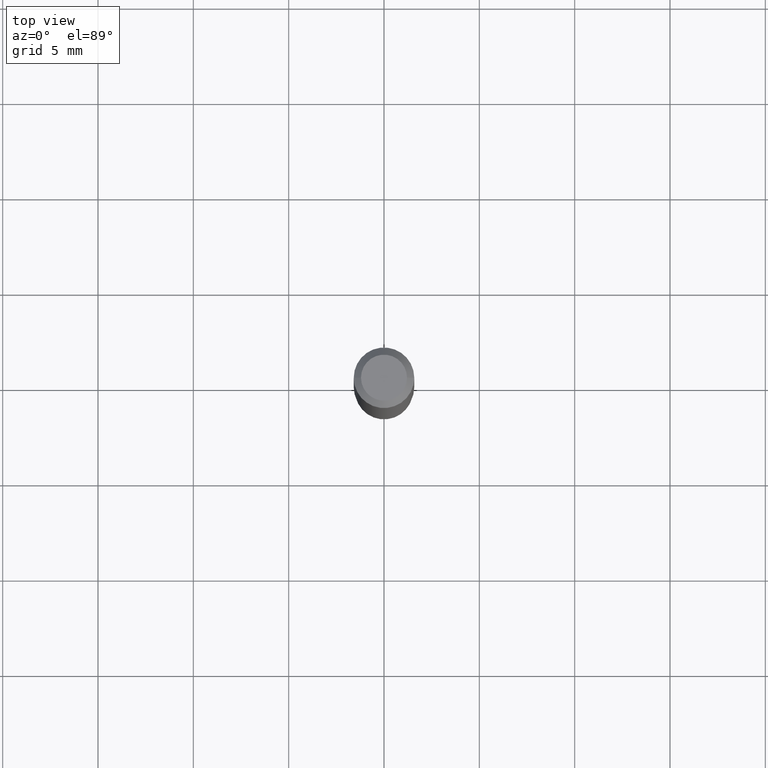
[diagram: clean part render]
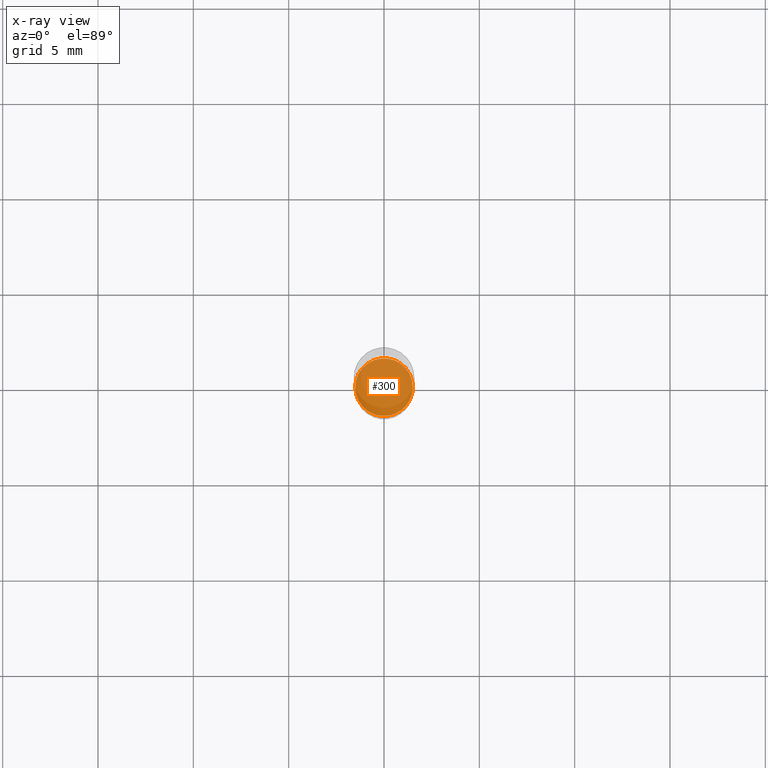
[diagram: x-ray — body ghosted, one internal face saturated and labeled with its STEP entity id]
A machine part, top view, then the same camera in x-ray: the body is ghosted and one INTERNAL B-rep face — a face not visible from any outside direction — is saturated and labeled: STEP entity #300.
In plain terms, the highlighted planar face has unit normal (-0, 0, 1).
Its self-contained STEP definition (entity closure, byte-faithful):
#2 = AXIS2_PLACEMENT_3D ( 'NONE', #279, #440, #316 ) ;
#39 = AXIS2_PLACEMENT_3D ( 'NONE', #301, #454, #503 ) ;
#67 = EDGE_CURVE ( 'NONE', #487, #460, #456, .T. ) ;
#80 = CARTESIAN_POINT ( 'NONE',  ( 0.05950000000000009448, -4.395775005603519536E-15, -1.140000000000000124 ) ) ;
#111 = DIRECTION ( 'NONE',  ( 1.000000000000000000, -6.982962677686265133E-15, 0.000000000000000000 ) ) ;
#118 = AXIS2_PLACEMENT_3D ( 'NONE', #472, #313, #111 ) ;
#144 = PLANE ( 'NONE',  #39 ) ;
#147 = ORIENTED_EDGE ( 'NONE', *, *, #450, .F. ) ;
#264 = FACE_OUTER_BOUND ( 'NONE', #507, .T. ) ;
#271 = ORIENTED_EDGE ( 'NONE', *, *, #67, .F. ) ;
#279 = CARTESIAN_POINT ( 'NONE',  ( 2.787834439051055989E-29, -3.980288726281186698E-15, -1.140000000000000124 ) ) ;
#300 = ADVANCED_FACE ( 'NONE', ( #264 ), #144, .F. ) ;
#301 = CARTESIAN_POINT ( 'NONE',  ( 2.787834439051055989E-29, -3.980288726281186698E-15, -1.140000000000000124 ) ) ;
#313 = DIRECTION ( 'NONE',  ( -2.445468806185136597E-29, 3.491481338843145583E-15, 1.000000000000000000 ) ) ;
#316 = DIRECTION ( 'NONE',  ( 1.000000000000000000, -6.982962677686265133E-15, 0.000000000000000000 ) ) ;
#439 = CARTESIAN_POINT ( 'NONE',  ( -0.05950000000000009448, -3.554866571329815116E-15, -1.140000000000000124 ) ) ;
#440 = DIRECTION ( 'NONE',  ( -2.445468806185136597E-29, 3.491481338843145583E-15, 1.000000000000000000 ) ) ;
#450 = EDGE_CURVE ( 'NONE', #460, #487, #465, .T. ) ;
#454 = DIRECTION ( 'NONE',  ( -2.438088387897960049E-29, 3.491481338843145188E-15, 1.000000000000000000 ) ) ;
#456 = CIRCLE ( 'NONE', #2, 0.05950000000000009448 ) ;
#460 = VERTEX_POINT ( 'NONE', #439 ) ;
#465 = CIRCLE ( 'NONE', #118, 0.05950000000000009448 ) ;
#472 = CARTESIAN_POINT ( 'NONE',  ( 2.787834439051055989E-29, -3.980288726281186698E-15, -1.140000000000000124 ) ) ;
#487 = VERTEX_POINT ( 'NONE', #80 ) ;
#503 = DIRECTION ( 'NONE',  ( 1.000000000000000000, -6.982962677686265922E-15, 4.876176775795935793E-29 ) ) ;
#507 = EDGE_LOOP ( 'NONE', ( #271, #147 ) ) ;